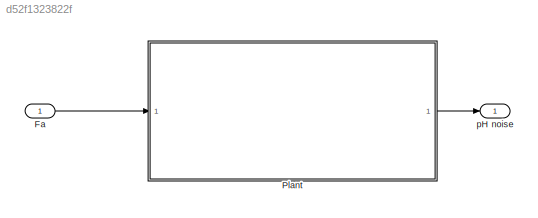
MODEL slx_d52f1323822f
KIND model
CONFIG AbsTol = auto
CONFIG EnableMultiTasking = off
CONFIG FixedStep = auto
CONFIG MaxStep = auto
CONFIG MinStep = auto
CONFIG RelTol = 1e-3
CONFIG SampleTimeConstraint = Unconstrained
CONFIG Solver = VariableStepAuto
CONFIG SolverName = VariableStepAuto
CONFIG StartTime = 0.0
CONFIG StopTime = 100
BLOCK [Inport] Fa
  Interpolate = off
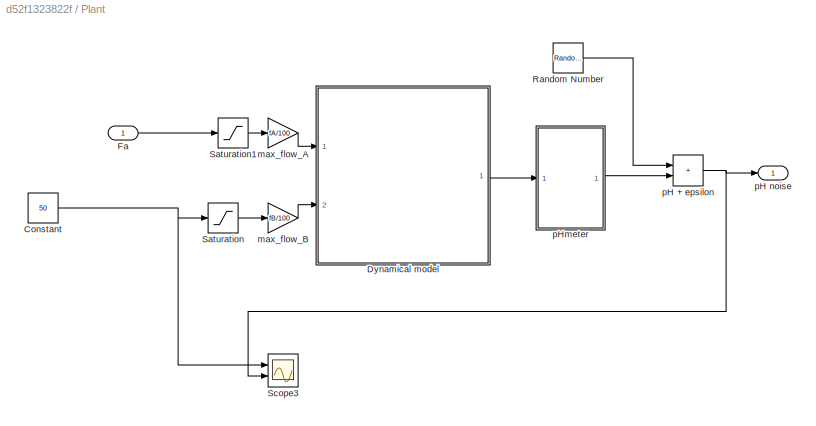
BLOCK [SubSystem] Plant
  Ports = [1, 1]
  RequestExecContextInheritance = off
BLOCK [Constant] Plant/Constant
  Value = 50
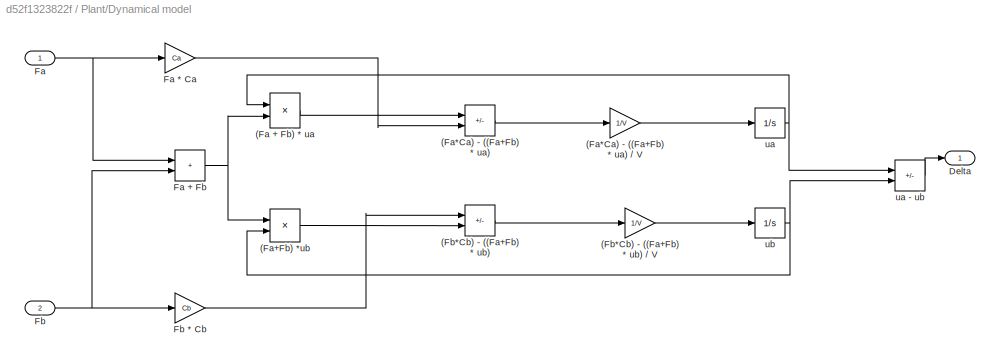
BLOCK [SubSystem] Plant/Dynamical model
  Ports = [2, 1]
  RequestExecContextInheritance = off
BLOCK [Product] Plant/Dynamical model/(Fa + Fb) * ua 
  Inputs = **
  Ports = [2, 1]
BLOCK [Sum] Plant/Dynamical model/(Fa*Ca) - ((Fa+Fb) * ua)
  IconShape = rectangular
  Inputs = -+
  Ports = [2, 1]
BLOCK [Gain] Plant/Dynamical model/(Fa*Ca) - ((Fa+Fb) * ua) // V
  Gain = 1/V
BLOCK [Product] Plant/Dynamical model/(Fa+Fb) *ub  
  Inputs = **
  Ports = [2, 1]
BLOCK [Sum] Plant/Dynamical model/(Fb*Cb) - ((Fa+Fb) * ub)
  IconShape = rectangular
  Inputs = +-
  Ports = [2, 1]
BLOCK [Gain] Plant/Dynamical model/(Fb*Cb) - ((Fa+Fb) * ub) // V
  Gain = 1/V
BLOCK [Outport] Plant/Dynamical model/Delta
BLOCK [Inport] Plant/Dynamical model/Fa
BLOCK [Gain] Plant/Dynamical model/Fa * Ca 
  Gain = Ca
BLOCK [Sum] Plant/Dynamical model/Fa + Fb
  IconShape = rectangular
  Ports = [2, 1]
BLOCK [Inport] Plant/Dynamical model/Fb
  Port = 2
BLOCK [Gain] Plant/Dynamical model/Fb * Cb
  Gain = Cb
BLOCK [Integrator] Plant/Dynamical model/ua
  LimitOutput = on
  LowerSaturationLimit = 0
  Ports = [1, 1]
  UpperSaturationLimit = 1
BLOCK [Sum] Plant/Dynamical model/ua - ub
  IconShape = rectangular
  Inputs = +-
  Ports = [2, 1]
BLOCK [Integrator] Plant/Dynamical model/ub
  LimitOutput = on
  LowerSaturationLimit = 0
  Ports = [1, 1]
  UpperSaturationLimit = 1
BLOCK [Inport] Plant/Fa
BLOCK [RandomNumber] Plant/Random Number
  SampleTime = dt
  Variance = 0.00000001
BLOCK [Saturate] Plant/Saturation
  LowerLimit = 0
  UpperLimit = 100
BLOCK [Saturate] Plant/Saturation1
  LowerLimit = 0
  UpperLimit = 100
BLOCK [Scope] Plant/Scope3
  Floating = off
  NumInputPorts = 2
  Ports = [2]
  ScopeSpecificationString = Simulink.scopes.TimeScopeBlockCfg('CurrentConfiguration', extmgr.ConfigurationSet(extmgr.Configuration('Core','General UI',true),extmgr.Configuration('Core','Source UI',true),extmgr.Configuration('Sources','WiredSimulink',true,'DataLoggingVariableName','ScopeData1'),extmgr.Configuration('Visuals','Time Domain',true,'SerializedDisplays',{struct('MinYLimReal','6.45566','MaxYLimReal','54.83826','YLab...<+1432ch>
BLOCK [Gain] Plant/max_flow_A
  Gain = fA/100
BLOCK [Gain] Plant/max_flow_B
  Gain = fB/100
BLOCK [Sum] Plant/pH + epsilon
  IconShape = rectangular
  Ports = [2, 1]
BLOCK [Outport] Plant/pH noise
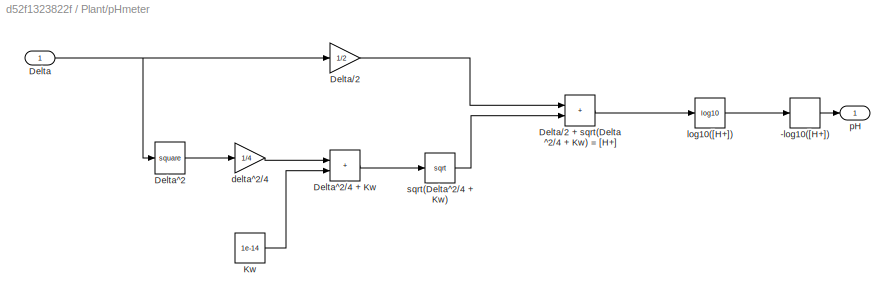
BLOCK [SubSystem] Plant/pHmeter
  Ports = [1, 1]
  RequestExecContextInheritance = off
BLOCK [UnaryMinus] Plant/pHmeter/-log10([H+])
BLOCK [Inport] Plant/pHmeter/Delta
BLOCK [Gain] Plant/pHmeter/Delta//2
  Gain = 1/2
BLOCK [Sum] Plant/pHmeter/Delta//2 + sqrt(Delta^2//4 + Kw) = [H+]
  IconShape = rectangular
  Ports = [2, 1]
BLOCK [Math] Plant/pHmeter/Delta^2
  Operator = square
  Ports = [1, 1]
BLOCK [Sum] Plant/pHmeter/Delta^2//4 + Kw
  IconShape = rectangular
  Ports = [2, 1]
BLOCK [Constant] Plant/pHmeter/Kw
  Value = 1e-14
BLOCK [Gain] Plant/pHmeter/delta^2//4
  Gain = 1/4
BLOCK [Math] Plant/pHmeter/log10([H+]) 
  Operator = log10
  Ports = [1, 1]
BLOCK [Outport] Plant/pHmeter/pH
BLOCK [Sqrt] Plant/pHmeter/sqrt(Delta^2//4 + Kw)
BLOCK [Outport] pH noise
LINE Fa:1 -> Plant:1
NET Plant/Constant:1 -> Plant/Saturation:1, Plant/Scope3:1
LINE Plant/Dynamical model/(Fa + Fb) * ua :1 -> Plant/Dynamical model/(Fa*Ca) - ((Fa+Fb) * ua):1
LINE Plant/Dynamical model/(Fa*Ca) - ((Fa+Fb) * ua) // V:1 -> Plant/Dynamical model/ua:1
LINE Plant/Dynamical model/(Fa*Ca) - ((Fa+Fb) * ua):1 -> Plant/Dynamical model/(Fa*Ca) - ((Fa+Fb) * ua) // V:1
LINE Plant/Dynamical model/(Fa+Fb) *ub  :1 -> Plant/Dynamical model/(Fb*Cb) - ((Fa+Fb) * ub):2
LINE Plant/Dynamical model/(Fb*Cb) - ((Fa+Fb) * ub) // V:1 -> Plant/Dynamical model/ub:1
LINE Plant/Dynamical model/(Fb*Cb) - ((Fa+Fb) * ub):1 -> Plant/Dynamical model/(Fb*Cb) - ((Fa+Fb) * ub) // V:1
LINE Plant/Dynamical model/Fa * Ca :1 -> Plant/Dynamical model/(Fa*Ca) - ((Fa+Fb) * ua):2
NET Plant/Dynamical model/Fa + Fb:1 -> Plant/Dynamical model/(Fa + Fb) * ua :2, Plant/Dynamical model/(Fa+Fb) *ub  :1
NET Plant/Dynamical model/Fa:1 -> Plant/Dynamical model/Fa * Ca :1, Plant/Dynamical model/Fa + Fb:1
LINE Plant/Dynamical model/Fb * Cb:1 -> Plant/Dynamical model/(Fb*Cb) - ((Fa+Fb) * ub):1
NET Plant/Dynamical model/Fb:1 -> Plant/Dynamical model/Fa + Fb:2, Plant/Dynamical model/Fb * Cb:1
LINE Plant/Dynamical model/ua - ub:1 -> Plant/Dynamical model/Delta:1
NET Plant/Dynamical model/ua:1 -> Plant/Dynamical model/(Fa + Fb) * ua :1, Plant/Dynamical model/ua - ub:1
NET Plant/Dynamical model/ub:1 -> Plant/Dynamical model/(Fa+Fb) *ub  :2, Plant/Dynamical model/ua - ub:2
LINE Plant/Dynamical model:1 -> Plant/pHmeter:1
LINE Plant/Fa:1 -> Plant/Saturation1:1
LINE Plant/Random Number:1 -> Plant/pH + epsilon:1
LINE Plant/Saturation1:1 -> Plant/max_flow_A:1
LINE Plant/Saturation:1 -> Plant/max_flow_B:1
LINE Plant/max_flow_A:1 -> Plant/Dynamical model:1
LINE Plant/max_flow_B:1 -> Plant/Dynamical model:2
NET Plant/pH + epsilon:1 -> Plant/Scope3:2, Plant/pH noise:1
LINE Plant/pHmeter/-log10([H+]):1 -> Plant/pHmeter/pH:1
LINE Plant/pHmeter/Delta//2 + sqrt(Delta^2//4 + Kw) = [H+]:1 -> Plant/pHmeter/log10([H+]) :1
LINE Plant/pHmeter/Delta//2:1 -> Plant/pHmeter/Delta//2 + sqrt(Delta^2//4 + Kw) = [H+]:1
NET Plant/pHmeter/Delta:1 -> Plant/pHmeter/Delta//2:1, Plant/pHmeter/Delta^2:1
LINE Plant/pHmeter/Delta^2//4 + Kw:1 -> Plant/pHmeter/sqrt(Delta^2//4 + Kw):1
LINE Plant/pHmeter/Delta^2:1 -> Plant/pHmeter/delta^2//4:1
LINE Plant/pHmeter/Kw:1 -> Plant/pHmeter/Delta^2//4 + Kw:2
LINE Plant/pHmeter/delta^2//4:1 -> Plant/pHmeter/Delta^2//4 + Kw:1
LINE Plant/pHmeter/log10([H+]) :1 -> Plant/pHmeter/-log10([H+]):1
LINE Plant/pHmeter/sqrt(Delta^2//4 + Kw):1 -> Plant/pHmeter/Delta//2 + sqrt(Delta^2//4 + Kw) = [H+]:2
LINE Plant/pHmeter:1 -> Plant/pH + epsilon:2
LINE Plant:1 -> pH noise:1
note: NET lines group one-source signal fan-out (src -> all destinations, sorted); 1:1 wires keep LINE
